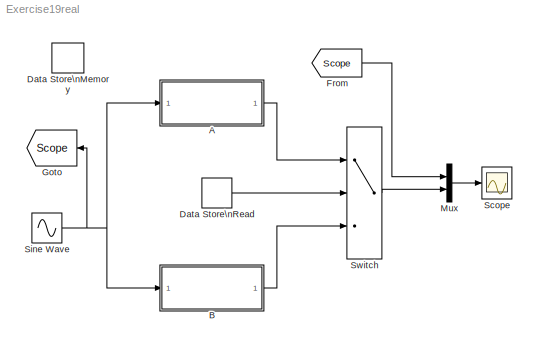
MODEL Exercise19real
KIND model
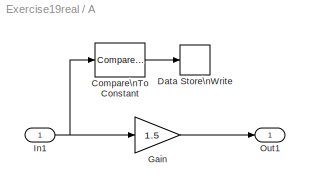
BLOCK [SubSystem] A
  FunctionWithSeparateData = off
  MaskHideContents = off
  MinAlgLoopOccurrences = off
  Opaque = off
  Ports = [1, 1]
  PropExecContextOutsideSubsystem = off
  RTWSystemCode = Auto
  RequestExecContextInheritance = off
BLOCK [Reference] A/Compare\nTo Constant  REF=simulink/Logic and Bit\nOperations/Compare\nTo Constant
  FunctionWithSeparateData = off
  LogicOutDataTypeMode = boolean
  Ports = [1, 1]
  RTWMemSecDataConstants = Inherit from model
  RTWMemSecDataInternal = Inherit from model
  RTWMemSecDataParameters = Inherit from model
  RTWMemSecFuncExecute = Inherit from model
  RTWMemSecFuncInitTerm = Inherit from model
  ShowPortLabels = FromPortIcon
  SourceBlock = simulink/Logic and Bit\nOperations/Compare\nTo Constant
  SourceType = Compare To Constant
  SystemSampleTime = -1
  ZeroCross = off
  const = 0.8
  relop = <=
BLOCK [DataStoreWrite] A/Data Store\nWrite
  DataStoreName = Error
  SampleTime = -1
BLOCK [Gain] A/Gain
  Gain = 1.5
  OutDataType = sfix(16)
  OutDataTypeMode = Inherit via internal rule
  OutDataTypeStr = Inherit: Inherit via internal rule
  OutScaling = 2^0
  ParamDataTypeStr = Inherit: Inherit via internal rule
  ParameterDataType = sfix(16)
  ParameterDataTypeMode = Inherit via internal rule
  ParameterScaling = 2^0
  SaturateOnIntegerOverflow = off
BLOCK [Inport] A/In1
  IconDisplay = Port number
  OutDataType = sfix(16)
  OutScaling = 2^0
BLOCK [Outport] A/Out1
  IconDisplay = Port number
  OutDataType = sfix(16)
  OutScaling = 2^0
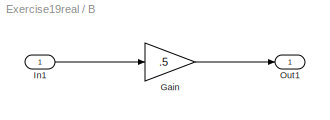
BLOCK [SubSystem] B
  FunctionWithSeparateData = off
  MaskHideContents = off
  MinAlgLoopOccurrences = off
  Opaque = off
  Ports = [1, 1]
  PropExecContextOutsideSubsystem = off
  RTWSystemCode = Auto
  RequestExecContextInheritance = off
BLOCK [Gain] B/Gain
  Gain = .5
  OutDataType = sfix(16)
  OutDataTypeMode = Inherit via internal rule
  OutDataTypeStr = Inherit: Inherit via internal rule
  OutScaling = 2^0
  ParamDataTypeStr = Inherit: Inherit via internal rule
  ParameterDataType = sfix(16)
  ParameterDataTypeMode = Inherit via internal rule
  ParameterScaling = 2^0
  SaturateOnIntegerOverflow = off
BLOCK [Inport] B/In1
  IconDisplay = Port number
  OutDataType = sfix(16)
  OutScaling = 2^0
BLOCK [Outport] B/Out1
  IconDisplay = Port number
  OutDataType = sfix(16)
  OutScaling = 2^0
BLOCK [DataStoreMemory] Data Store\nMemory
  DataStoreName = Error
  OutDataType = sfix(16)
  OutScaling = 2^0
  RTWStateStorageClass = Auto
  ReadBeforeWriteMsg = warning
  VectorParams1D = on
  WriteAfterReadMsg = warning
  WriteAfterWriteMsg = warning
BLOCK [DataStoreRead] Data Store\nRead
  DataStoreName = Error
  SampleTime = 0
BLOCK [From] From
  CloseFcn = tagdialog Close
  GotoTag = Scope
BLOCK [Goto] Goto
  GotoTag = Scope
  TagVisibility = local
BLOCK [Mux] Mux
  DisplayOption = bar
  Inputs = 2
  Ports = [2, 1]
BLOCK [Scope] Scope
  DataFormat = StructureWithTime
  Floating = off
  NumInputPorts = 1
  Ports = [1]
  SampleTime = 0
BLOCK [Sin] Sine Wave
  Ports = [0, 1]
  SampleTime = 0.1
BLOCK [Switch] Switch
  InputSameDT = off
  OutDataType = sfix(16)
  OutScaling = 2^0
  SaturateOnIntegerOverflow = off
LINE A/Compare\nTo Constant:1 -> A/Data Store\nWrite:1
LINE A/Gain:1 -> A/Out1:1
NET A/In1:1 -> A/Compare\nTo Constant:1, A/Gain:1
LINE A:1 -> Switch:1
LINE B/Gain:1 -> B/Out1:1
LINE B/In1:1 -> B/Gain:1
LINE B:1 -> Switch:3
LINE Data Store\nRead:1 -> Switch:2
LINE From:1 -> Mux:1
LINE Mux:1 -> Scope:1
NET Sine Wave:1 -> A:1, B:1, Goto:1
LINE Switch:1 -> Mux:2
note: NET lines group one-source signal fan-out (src -> all destinations, sorted); 1:1 wires keep LINE
